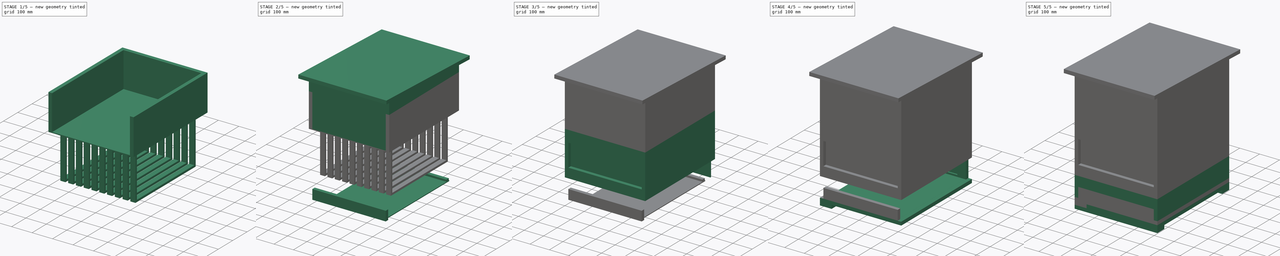
[diagram: build sequence overview — one tinted view per stage of 5, left to right]
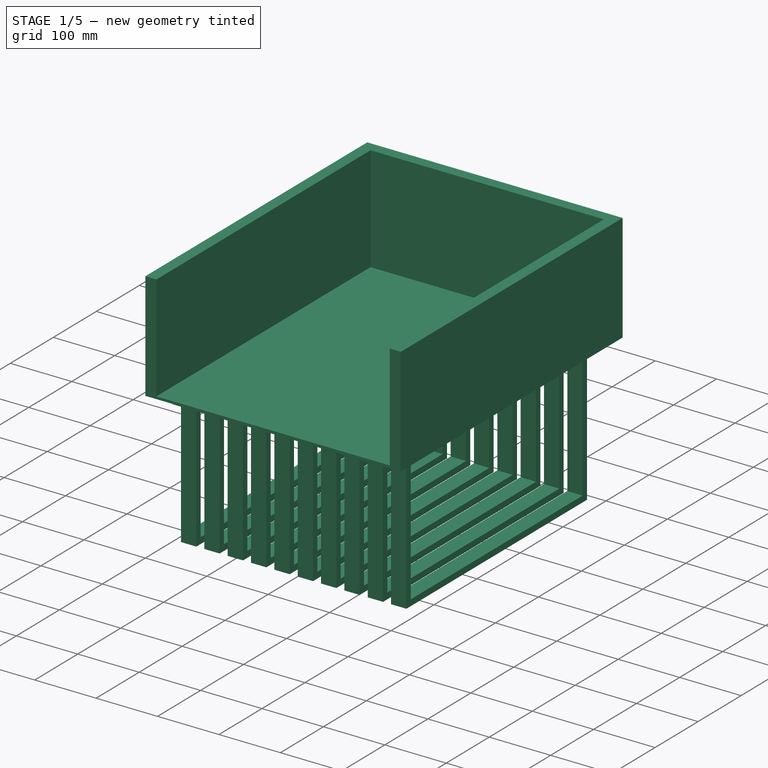
[diagram: stage 1 of 5 — iso view after this stage's code; geometry added in this stage tinted green]
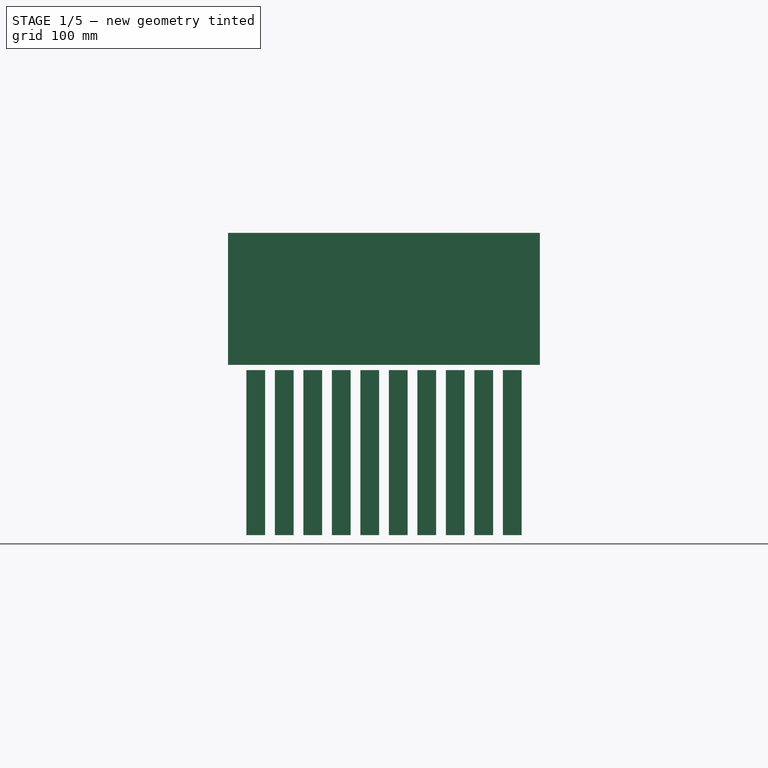
[diagram: stage 1 of 5 — front view after this stage's code; geometry added in this stage tinted green]
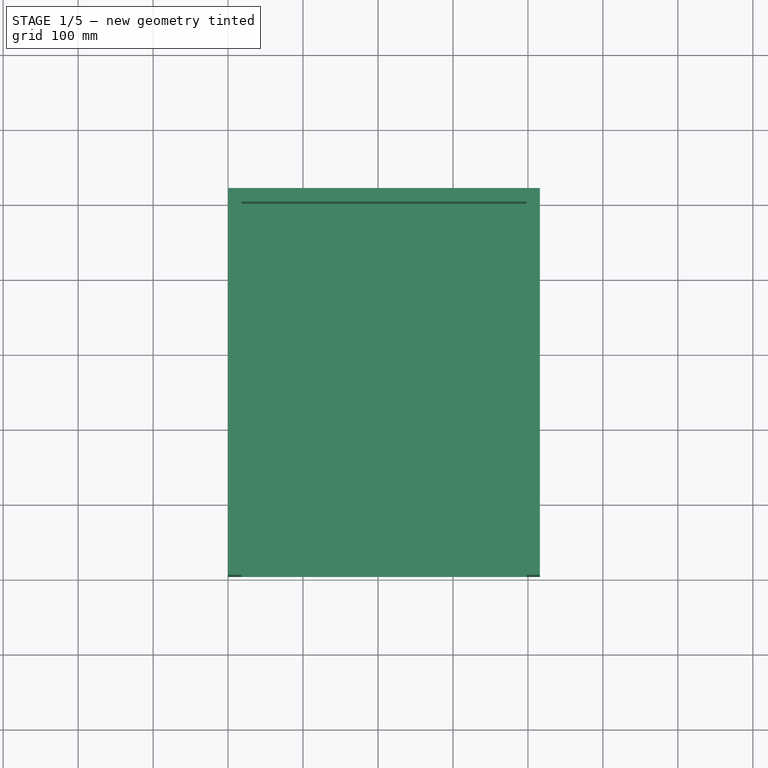
[diagram: stage 1 of 5 — top view after this stage's code; geometry added in this stage tinted green]
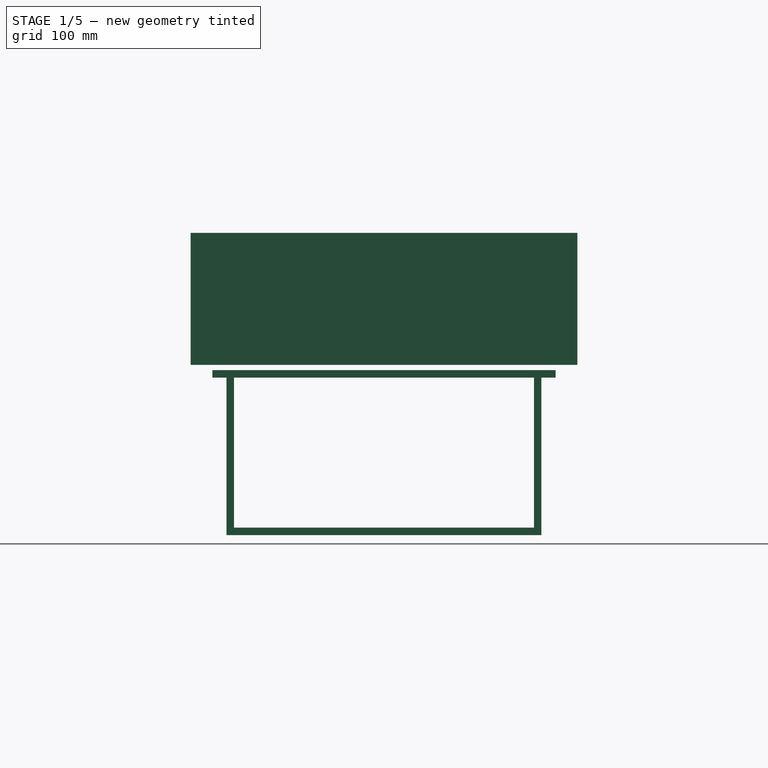
[diagram: stage 1 of 5 — right view after this stage's code; geometry added in this stage tinted green]
FCSTD DOCUMENT  (FreeCAD 0.20R)
Label: Hohenheimer Einfachbeute modifiable
License: All rights reserved
LicenseURL: http://en.wikipedia.org/wiki/All_rights_reserved
objects: Part::Box×43, App::DocumentObjectGroup×5, Part::MultiFuse×2, Sketcher::SketchObject×2, PartDesign::Pad×2, Part::Cut×1, Part::Fuse×1, Spreadsheet::Sheet×1, Part::FeaturePython×1
note: 53 computed .brp shape members not serialized (recipe doc carries the construction recipe); baked Part::Feature solids carry a one-line shape summary decoded from their .brp

FEATURE [Part::Box] Box045  label="Rähmchen obere Leiste"
  AttacherType = Attacher::AttachEngine3D
  Height = 10
  Length = 25
  Placement = pos=(0,-19,210) rot=(0,0,1;0rad)
  Width = 458
  expr: .Placement.Base.z = Spreadsheet.raehmchen_hoehe - 10
  expr: Width = Spreadsheet.raehmchen_obertraeger
FEATURE [Part::Box] Box048  label="Rähmchen Seite"
  AttacherType = Attacher::AttachEngine3D
  Height = 200
  Length = 25
  Placement = pos=(0,410,10) rot=(0,0,1;0rad)
  Width = 10
  expr: .Placement.Base.y = Spreadsheet.raehmchen_breite - 10
  expr: Height = Spreadsheet.raehmchen_hoehe - 10 * 2
FEATURE [Part::Box] Box050  label="Rähmchen Seite 2"
  AttacherType = Attacher::AttachEngine3D
  Height = 200
  Length = 25
  Placement = pos=(0,0,10) rot=(0,0,1;0rad)
  Width = 10
  expr: Height = Spreadsheet.raehmchen_hoehe - 10 * 2
FEATURE [Part::Box] Box051  label="Rähmchen untere Leiste"
  AttacherType = Attacher::AttachEngine3D
  Height = 10
  Length = 25
  Width = 420
  expr: Width = Spreadsheet.raehmchen_breite
FEATURE [Part::MultiFuse] Fusion003  label="Rähmchen001"
  Placement = pos=(24.5,48,154) rot=(0,0,1;0rad)
  Shapes = -> [Box045,Box051,Box048,Box050]
  expr: .Placement.Base.x = Spreadsheet.holzdicke + (Spreadsheet.wabenabstand - 25) / 2
  expr: .Placement.Base.y = Spreadsheet.holzdicke * 2 + 12
  expr: .Placement.Base.z = Spreadsheet.bodenhoehe
FEATURE [Part::Box] Box175  label="Magazin Griff oben (3)002"
  AttacherType = Attacher::AttachEngine3D
  Height = 172
  Length = 380
  Placement = pos=(18,498,385) rot=(0,0,1;0rad)
  Width = 18
  expr: .Placement.Base.x = Spreadsheet.holzdicke
  expr: .Placement.Base.y = Spreadsheet.laenge - Spreadsheet.holzdicke
  expr: .Placement.Base.z = Spreadsheet.bodenhoehe + Spreadsheet.raehmchen_hoehe + 7 + 4
  expr: Length = Spreadsheet.wabenabstand * Spreadsheet.raehmchen_anzahl
  expr: Width = Spreadsheet.holzdicke
FEATURE [Part::Box] Box176  label="Magazin Seitenwand (1)088"
  AttacherType = Attacher::AttachEngine3D
  Height = 172
  Length = 18
  Placement = pos=(398,0,385) rot=(0,0,1;0rad)
  Width = 516
  expr: .Placement.Base.x = Spreadsheet.wabenabstand * Spreadsheet.raehmchen_anzahl + Spreadsheet.holzdicke
  expr: .Placement.Base.z = Spreadsheet.bodenhoehe + Spreadsheet.raehmchen_hoehe + 7 + 4
  expr: Length = Spreadsheet.holzdicke
  expr: Width = Spreadsheet.laenge
FEATURE [Part::Box] Box177  label="Magazin Seitenwand (1.1)002"
  AttacherType = Attacher::AttachEngine3D
  Height = 172
  Length = 18
  Placement = pos=(0,0,385) rot=(0,0,1;0rad)
  Width = 516
  expr: .Placement.Base.z = Spreadsheet.bodenhoehe + Spreadsheet.raehmchen_hoehe + 7 + 4
  expr: Length = Spreadsheet.holzdicke
  expr: Width = Spreadsheet.laenge
FEATURE [Part::Box] Box178  label="Futterzargenboden - Passendes Loch hineinsägen!"
  AttacherType = Attacher::AttachEngine3D
  Height = 4
  Length = 416
  Placement = pos=(0,0,381) rot=(0,0,1;0rad)
  Width = 516
  expr: .Placement.Base.z = Spreadsheet.bodenhoehe + Spreadsheet.raehmchen_hoehe + 7
  expr: Length = Spreadsheet.wabenabstand * Spreadsheet.raehmchen_anzahl + Spreadsheet.holzdicke * 2
  expr: Width = Spreadsheet.laenge
FEATURE [App::DocumentObjectGroup] Gruppe027  label="Futterzarge001"
  Group = -> [Box174,Box175,Box176,Box177,Box178]
FEATURE [Spreadsheet::Sheet] Spreadsheet
  cells = A1(raehmchen_obertraeger)=458; B1=Rähmchen Oberträger A + E + E in mm; A2(raehmchen_seiten)=200; B2=Rähmchen D in mm; C2=<-- Wert wird nicht verwendet; A3(raehmchen_breite)=420; B3=Rähmchen Breite A in mm; A4(raehmchen_hoehe)=220; B4=Rähmchen Höhe; A5(raehmchen_anzahl)=10; B5=Anzahl Rähmchen pro Zarge; D5=Spreadsheet.raehmchen_anzahl; A8(wabenabstand)=38; B8=Wabenabstand; C8=<-- eher groß gewählt, um einfacheres Hantieren mit den Rähmchen zu ermöglichen - 27mm tun es aber sicher auch und führen vermutlich zu weniger Verbau; A9(holzdicke)=18; B9=Holzdicke; D9=Spreadsheet.holzdicke; A11(laenge)==raehmchen_breite + holzdicke * 4 + 12 * 2; B11=Länge Außenmaße; C11=<-- BERECHNETER WERT  - NICHT VERÄNDERN; D11=Spreadsheet.laenge; E11=12*2 ist der Abstand zwischen rähmchen und wand - könnte vmtl auch kleiner sein, funktioniert aber bei mir ; A12(bodenhoehe)==holzdicke * 3 + 100; B12=Höhe Boden; C12=<-- BERECHNETER WERT  - NICHT VERÄNDERN; D12=Spreadsheet.bodenhoehe; A15==wabenabstand * 10 + holzdicke * 2; B15=Breite außenmaße; C15=Spreadsheet.wabenabstand * Spreadsheet.raehmchen_anzahl + Spreadsheet.holzdicke * 2; A17==wabenabstand * 10; C17=Spreadsheet.wabenabstand * Spreadsheet.raehmchen_anzahl; B20=Spreadsheet.holzdicke
FEATURE [Part::FeaturePython] Array  # Draft array (typed FeaturePython)
  AlwaysSyncPlacement = false
  Angle = 360
  ArrayType = 0
  Axis = (0,0,1)
  Base = -> Fusion003
  Center = (0,0,0)
  Count = 10
  ExpandArray = false
  Fuse = false
  IntervalAxis = (0,0,0)
  IntervalX = (38,0,0)
  IntervalY = (0,100,0)
  IntervalZ = (0,0,100)
  NumberCircles = 3
  NumberPolar = 5
  NumberX = 10
  NumberY = 1
  NumberZ = 1
  PlacementList = 10 placements: arithmetic series from (24.5,48,154) step (38,0,0) to (366.5,48,154)
  RadialDistance = 50
  ScaleList = (10) [(1,1,1),(1,1,1),(1,1,1),(1,1,1),(1,1,1),(1,1,1),(1,1,1),(1,1,1),(1,1,1),(1,1,1)]
  Symmetry = 1
  TangentialDistance = 25
  expr: .IntervalX.x = Spreadsheet.wabenabstand
  expr: NumberX = Spreadsheet.raehmchen_anzahl
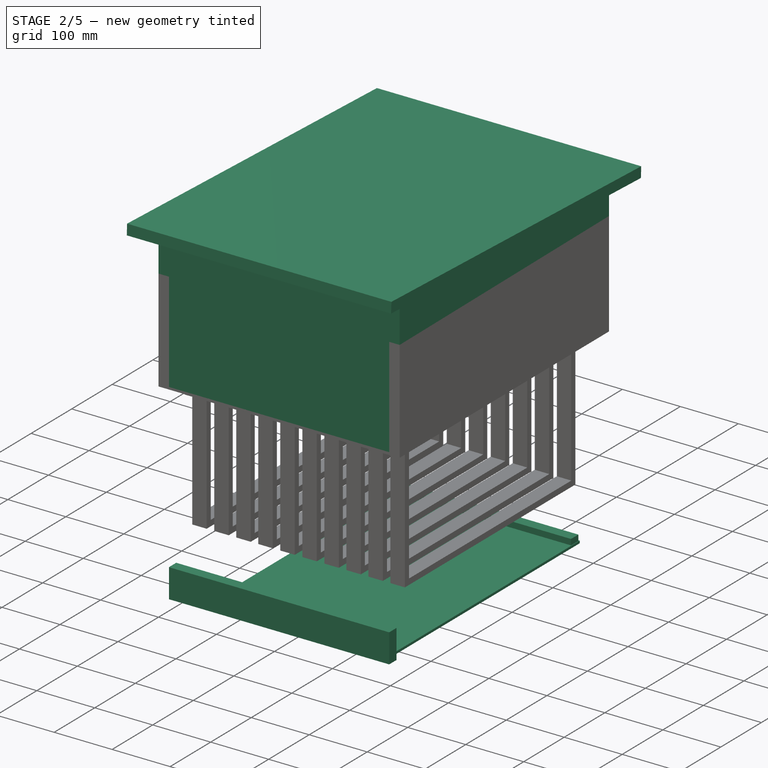
[diagram: stage 2 of 5 — iso view after this stage's code; geometry added in this stage tinted green]
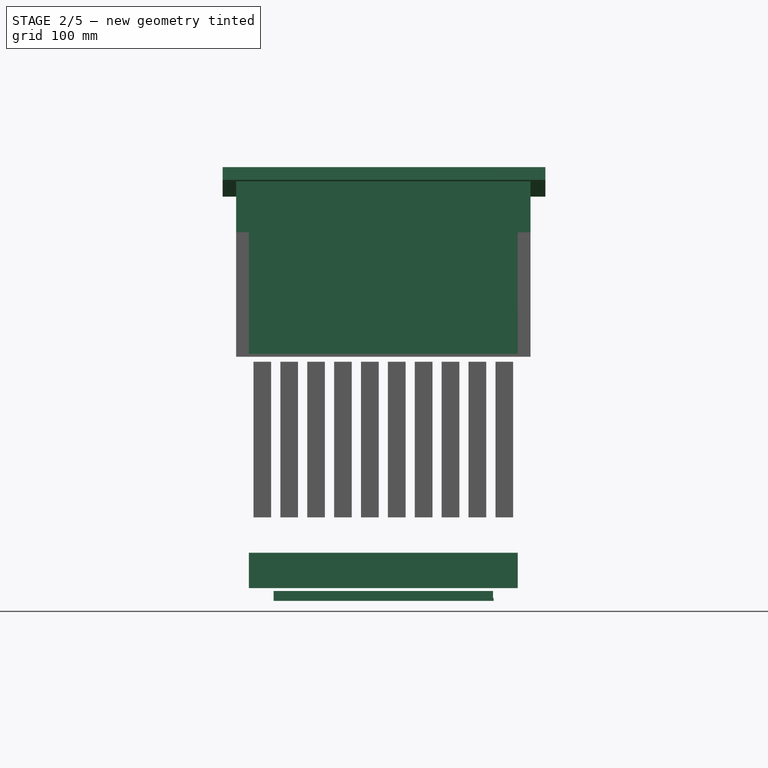
[diagram: stage 2 of 5 — front view after this stage's code; geometry added in this stage tinted green]
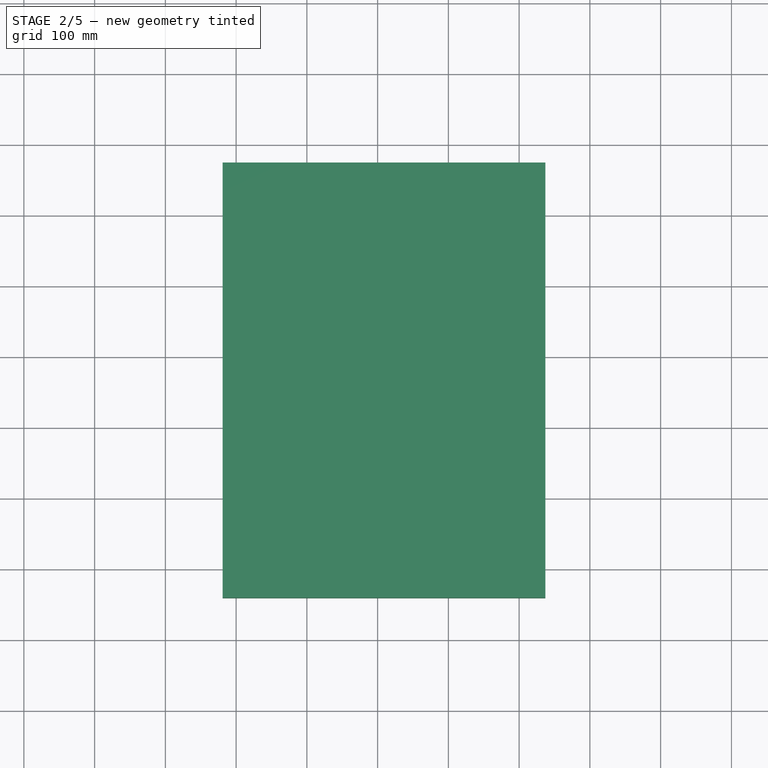
[diagram: stage 2 of 5 — top view after this stage's code; geometry added in this stage tinted green]
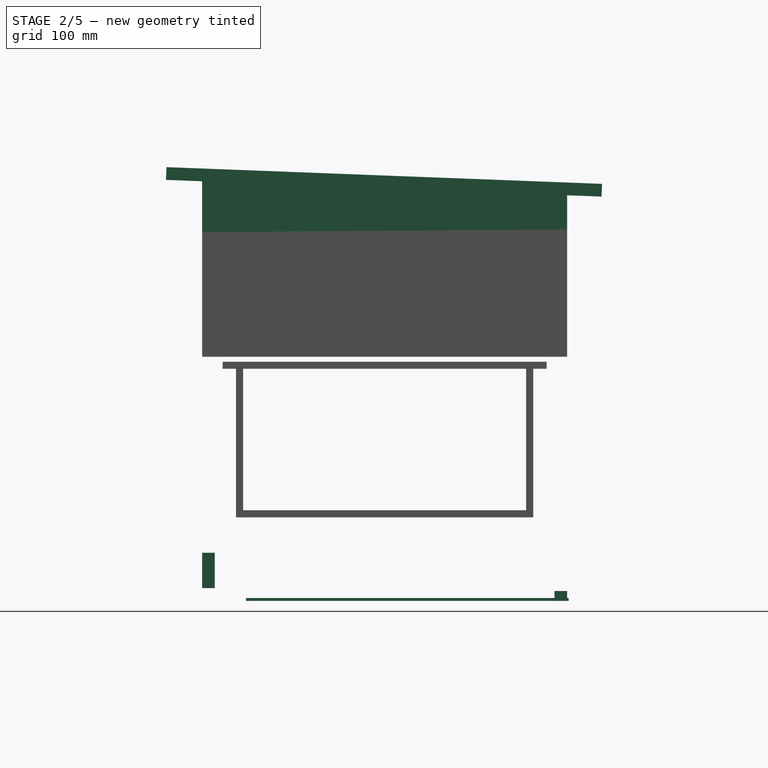
[diagram: stage 2 of 5 — right view after this stage's code; geometry added in this stage tinted green]
FEATURE [Part::Box] Box022  label="Boden Varroalade Verschluss (2.2)"
  AttacherType = Attacher::AttachEngine3D
  Height = 10
  Length = 310
  Placement = pos=(53,498,40) rot=(0,0,1;0rad)
  Width = 18
  expr: .Placement.Base.y = Spreadsheet.laenge - Spreadsheet.holzdicke
  expr: .Placement.Base.z = Spreadsheet.holzdicke * 2 + 4
  expr: Height = Spreadsheet.holzdicke - 8
  expr: Length = Spreadsheet.wabenabstand * Spreadsheet.raehmchen_anzahl + Spreadsheet.holzdicke * 2 - 2 * 50 - 2 * 3
  expr: Width = Spreadsheet.holzdicke
FEATURE [Part::Box] Box042  label="Deckel Stirnseite (2.1)"
  AttacherType = Attacher::AttachEngine3D
  Height = 70
  Length = 380
  Placement = pos=(18,0,561) rot=(0,0,1;0rad)
  Width = 18
  expr: .Placement.Base.x = Spreadsheet.holzdicke
  expr: .Placement.Base.z = Spreadsheet.bodenhoehe + Spreadsheet.raehmchen_hoehe + 7 + 4 + 176
  expr: Length = Spreadsheet.wabenabstand * Spreadsheet.raehmchen_anzahl
  expr: Width = Spreadsheet.holzdicke
FEATURE [Part::Box] Box043  label="Deckel Oberseite (3)"
  AttacherType = Attacher::AttachEngine3D
  Height = 18
  Length = 456
  Placement = pos=(-19,-51,631) rot=(-1,0,0;0.038397rad)
  Width = 616
  expr: .Placement.Base.z = Spreadsheet.bodenhoehe + Spreadsheet.raehmchen_hoehe + 7 + 4 + 70 + 176
  expr: Height = Spreadsheet.holzdicke
  expr: Length = Spreadsheet.wabenabstand * Spreadsheet.raehmchen_anzahl + 38 * 2
  expr: Width = Spreadsheet.laenge + 100
FEATURE [App::DocumentObjectGroup] Gruppe004  label="Rähmchen"
  Group = -> [Fusion003]
FEATURE [App::DocumentObjectGroup] Gruppe001  label="Zarge1"
  Group = -> [Box025,Box026,Box027,Box028,Box029,Box030,Box031,Box032,Gruppe004]
FEATURE [Part::Box] Box044  label="Deckel Stirnseite (2.1)001"
  AttacherType = Attacher::AttachEngine3D
  Height = 4
  Length = 416
  Placement = pos=(0,0,557) rot=(0,0,1;0rad)
  Width = 516
  expr: .Placement.Base.z = Spreadsheet.bodenhoehe + Spreadsheet.raehmchen_hoehe + 7 + 176
  expr: Length = Spreadsheet.wabenabstand * Spreadsheet.raehmchen_anzahl + Spreadsheet.holzdicke * 2
  expr: Width = Spreadsheet.laenge
FEATURE [Part::Box] Box172  label="Boden Varroalade Schaufläche"
  AttacherType = Attacher::AttachEngine3D
  Height = 4
  Length = 311
  Placement = pos=(53,62,36) rot=(0,0,1;0rad)
  Width = 456
  expr: .Placement.Base.z = Spreadsheet.holzdicke * 2
  expr: Length = Spreadsheet.wabenabstand * Spreadsheet.raehmchen_anzahl + Spreadsheet.holzdicke * 2 - 100 - 5
  expr: Width = Spreadsheet.laenge - 60
FEATURE [Part::Fuse] Fusion064  label="Varroaschublade"
  Base = -> Box172
  Tool = -> Box022
FEATURE [Sketcher::SketchObject] Sketch002
  FullyConstrained = true
  MapMode = 5
  Placement = pos=(0,0,561) rot=(0.57735,0.57735,0.57735;2.0944rad)
  expr: .Placement.Base.z = Spreadsheet.bodenhoehe + Spreadsheet.raehmchen_hoehe + 7 + 4 + 176
  expr: Constraints[7] = Spreadsheet.laenge
  sketch-geometry (4):
    g0: LineSegment StartX=0 StartY=0 StartZ=0 EndX=0 EndY=70 EndZ=0
    g1: LineSegment StartX=0 StartY=70 StartZ=0 EndX=516 EndY=50 EndZ=0
    g2: LineSegment StartX=516 StartY=50 StartZ=0 EndX=516 EndY=0 EndZ=0
    g3: LineSegment StartX=516 StartY=0 StartZ=0 EndX=0 EndY=0 EndZ=0
  constraints (12):
    c: Coincident(g0,g1)
    c: Coincident(g1,g2)
    c: Coincident(g2,g3)
    c: Coincident(g3,g0)
    c: Parallel(g2,g0)
    c: Parallel(g0,g-2)
    c: Perpendicular(g2,g3)
    c: Distance(g3) = 516
    c: Distance(g0) = 70
    c: Distance(g2) = 50
    c: PointOnObject(g0,g-2)
    c: PointOnObject(g0,g-1)
FEATURE [PartDesign::Pad] Pad001  label="Deckel Seitenwand 1"
  AllowMultiFace = false
  Direction = (1,-1e-16,2e-16)
  Length = 18
  Length2 = 100
  Placement = pos=(0,0,561) rot=(0.57735,0.57735,0.57735;2.0944rad)
  Profile = -> Sketch002
  Type = 0
  expr: Length = Spreadsheet.holzdicke
FEATURE [Sketcher::SketchObject] Sketch001
  FullyConstrained = true
  MapMode = 5
  Placement = pos=(398,0,561) rot=(0.57735,0.57735,0.57735;2.0944rad)
  expr: .Placement.Base.x = Spreadsheet.wabenabstand * Spreadsheet.raehmchen_anzahl + Spreadsheet.holzdicke
  expr: .Placement.Base.z = Spreadsheet.bodenhoehe + Spreadsheet.raehmchen_hoehe + 7 + 4 + 176
  expr: Constraints[6] = Spreadsheet.laenge
  sketch-geometry (4):
    g0: LineSegment StartX=0 StartY=0 StartZ=0 EndX=0 EndY=70 EndZ=0
    g1: LineSegment StartX=0 StartY=70 StartZ=0 EndX=516 EndY=50 EndZ=0
    g2: LineSegment StartX=516 StartY=50 StartZ=0 EndX=516 EndY=0 EndZ=0
    g3: LineSegment StartX=516 StartY=0 StartZ=0 EndX=0 EndY=0 EndZ=0
  constraints (12):
    c: Coincident(g0,g1)
    c: Coincident(g1,g2)
    c: Coincident(g2,g3)
    c: Coincident(g3,g0)
    c: Perpendicular(g3,g2)
    c: Perpendicular(g3,g0)
    c: Distance(g3) = 516
    c: Distance(g2) = 50
    c: Horizontal(g3)
    c: Distance(g0) = 70
    c: PointOnObject(g0,g-2)
    c: PointOnObject(g0,g-1)
FEATURE [PartDesign::Pad] Pad  label="Deckel Seitenwand 2"
  AllowMultiFace = false
  Direction = (1,-1e-16,2e-16)
  Length = 18
  Length2 = 100
  Placement = pos=(398,0,561) rot=(0.57735,0.57735,0.57735;2.0944rad)
  Profile = -> Sketch001
  Type = 0
  expr: Length = Spreadsheet.holzdicke
FEATURE [App::DocumentObjectGroup] Gruppe003  label="Deckel"
  Group = -> [Box041,Box042,Box043,Box044,Pad001,Pad]
FEATURE [Part::Box] Box173  label="Boden - Fluglochverschluss"
  AttacherType = Attacher::AttachEngine3D
  Height = 50
  Length = 380
  Placement = pos=(18,0,54) rot=(0,0,1;0rad)
  Width = 18
  expr: .Placement.Base.x = Spreadsheet.holzdicke
  expr: .Placement.Base.z = Spreadsheet.holzdicke * 3
  expr: Length = Spreadsheet.wabenabstand * Spreadsheet.raehmchen_anzahl
  expr: Width = Spreadsheet.holzdicke
FEATURE [App::DocumentObjectGroup] Gruppe  label="Boden"
  Group = -> [Box,Box002,Box003,Box004,Box005,Box007,Box008,Box009,Box014,Box015,Box016,Box017,Box018,Box019,Cut,Fusion,Fusion064,Box173]
FEATURE [Part::Box] Box174  label="Magazin Griff oben (3.1)002"
  AttacherType = Attacher::AttachEngine3D
  Height = 172
  Length = 380
  Placement = pos=(18,0,385) rot=(0,0,1;0rad)
  Width = 18
  expr: .Placement.Base.x = Spreadsheet.holzdicke
  expr: .Placement.Base.z = Spreadsheet.bodenhoehe + Spreadsheet.raehmchen_hoehe + 7 + 4
  expr: Length = Spreadsheet.wabenabstand * Spreadsheet.raehmchen_anzahl
  expr: Width = Spreadsheet.holzdicke
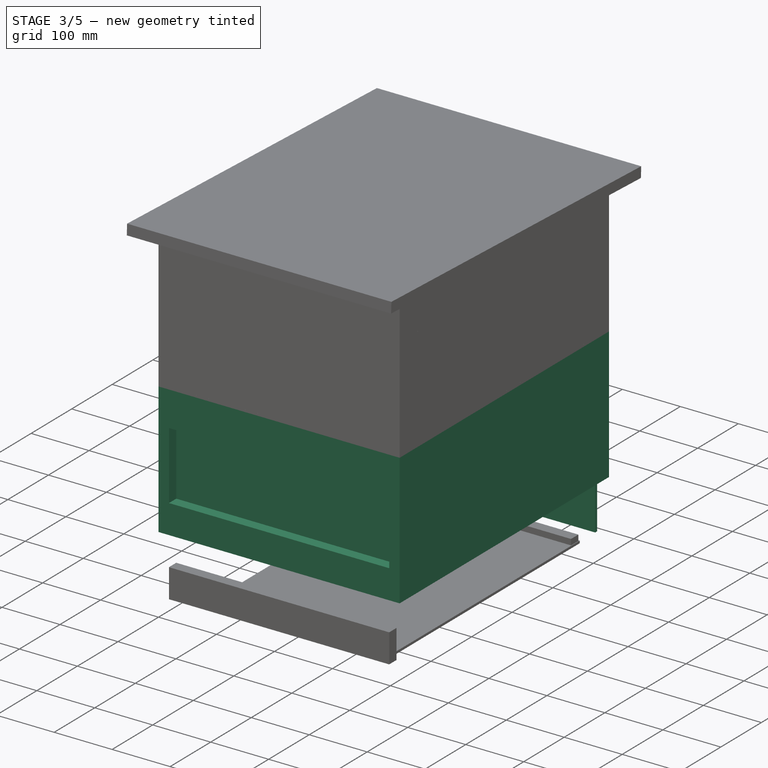
[diagram: stage 3 of 5 — iso view after this stage's code; geometry added in this stage tinted green]
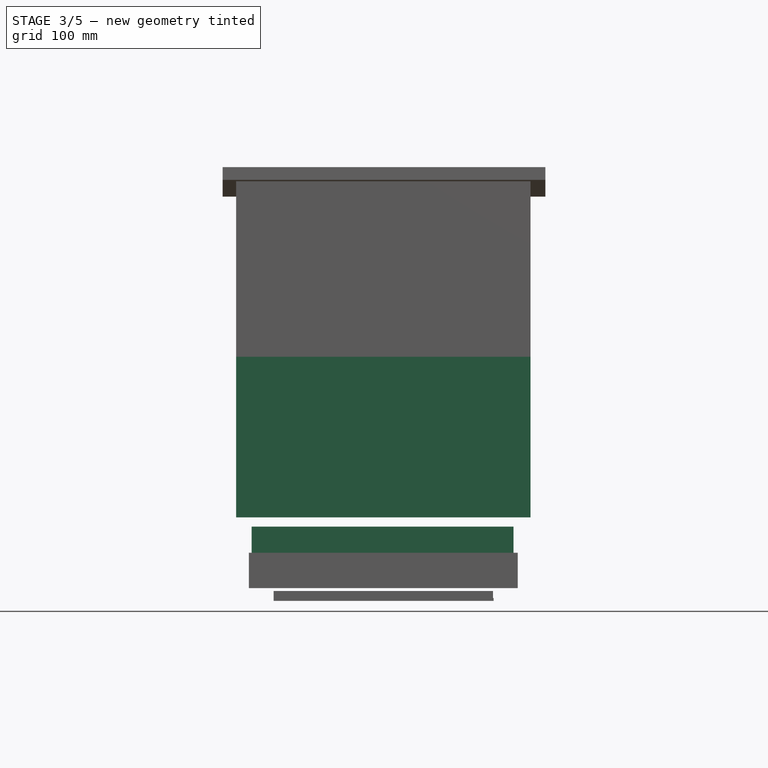
[diagram: stage 3 of 5 — front view after this stage's code; geometry added in this stage tinted green]
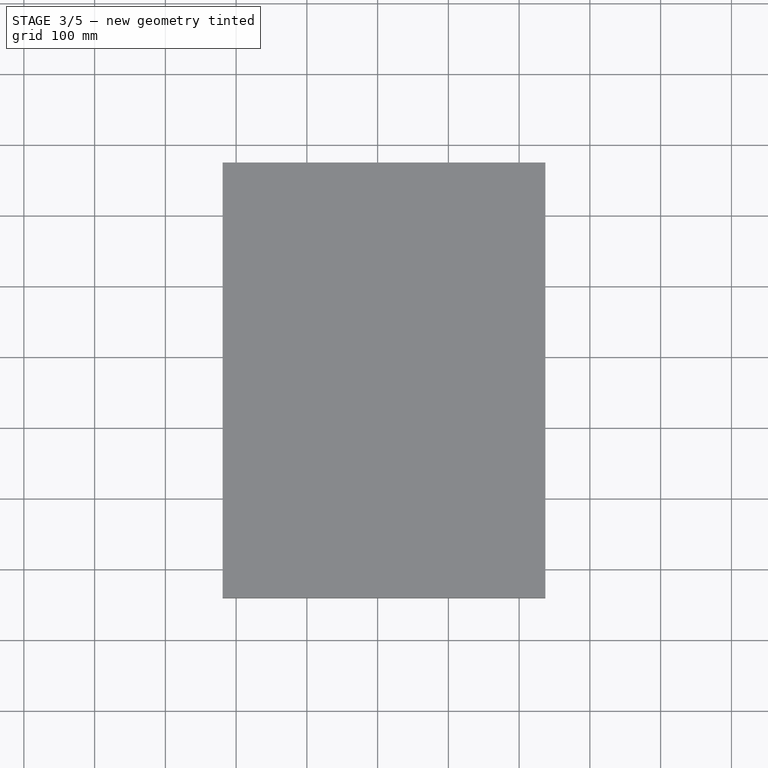
[diagram: stage 3 of 5 — top view after this stage's code; geometry added in this stage tinted green]
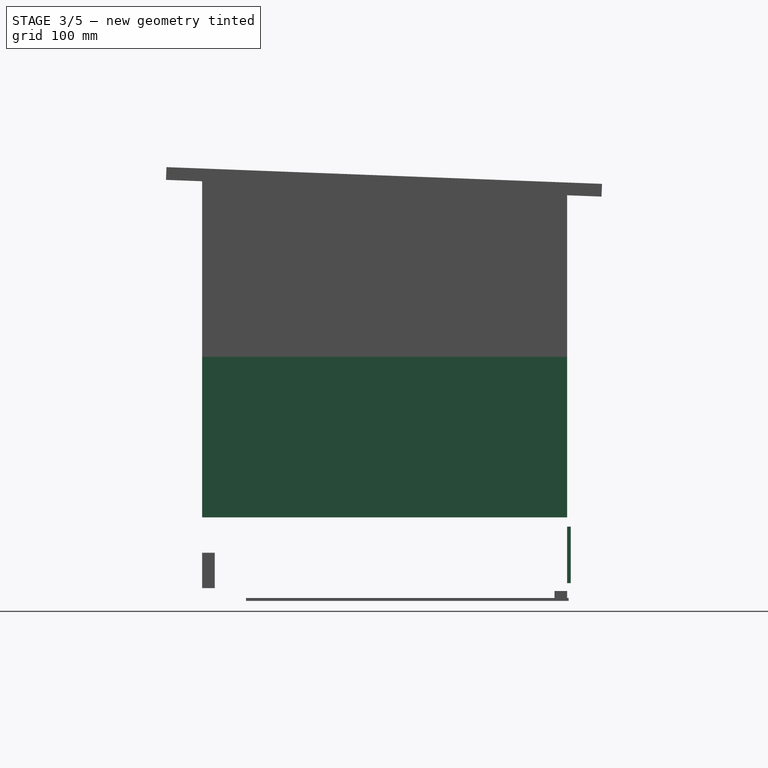
[diagram: stage 3 of 5 — right view after this stage's code; geometry added in this stage tinted green]
FEATURE [Part::Box] Box024  label="Boden Rückwand Deckel Schutz gg Reinrutschen"
  AttacherType = Attacher::AttachEngine3D
  Height = 80
  Length = 370
  Placement = pos=(22,516,61) rot=(0,0,1;0rad)
  Width = 5
  expr: .Placement.Base.x = Spreadsheet.holzdicke + 4
  expr: .Placement.Base.y = Spreadsheet.laenge
  expr: .Placement.Base.z = Spreadsheet.holzdicke * 3 + 7
  expr: Length = Spreadsheet.wabenabstand * Spreadsheet.raehmchen_anzahl - 10
FEATURE [Part::Box] Box025  label="Magazin Stirnwand (2)"
  AttacherType = Attacher::AttachEngine3D
  Height = 210
  Length = 380
  Placement = pos=(18,480,154) rot=(0,0,1;0rad)
  Width = 18
  expr: .Placement.Base.x = Spreadsheet.holzdicke
  expr: .Placement.Base.y = Spreadsheet.laenge - Spreadsheet.holzdicke * 2
  expr: .Placement.Base.z = Spreadsheet.bodenhoehe
  expr: Height = Spreadsheet.raehmchen_hoehe - 17 + 7
  expr: Length = Spreadsheet.wabenabstand * Spreadsheet.raehmchen_anzahl
  expr: Width = Spreadsheet.holzdicke
FEATURE [Part::Box] Box026  label="Magazin Stirnwand (2.1)"
  AttacherType = Attacher::AttachEngine3D
  Height = 210
  Length = 380
  Placement = pos=(18,18,154) rot=(0,0,1;0rad)
  Width = 18
  expr: .Placement.Base.x = Spreadsheet.holzdicke
  expr: .Placement.Base.y = Spreadsheet.holzdicke
  expr: .Placement.Base.z = Spreadsheet.bodenhoehe
  expr: Height = Spreadsheet.raehmchen_hoehe - 17 + 7
  expr: Length = Spreadsheet.wabenabstand * Spreadsheet.raehmchen_anzahl
  expr: Width = Spreadsheet.holzdicke
FEATURE [Part::Box] Box027  label="Magazin Griff oben (3)"
  AttacherType = Attacher::AttachEngine3D
  Height = 60
  Length = 380
  Placement = pos=(18,0,321) rot=(0,0,1;0rad)
  Width = 18
  expr: .Placement.Base.x = Spreadsheet.holzdicke
  expr: .Placement.Base.z = Spreadsheet.bodenhoehe + 7 + Spreadsheet.raehmchen_hoehe - 60
  expr: Length = Spreadsheet.wabenabstand * Spreadsheet.raehmchen_anzahl
  expr: Width = Spreadsheet.holzdicke
FEATURE [Part::Box] Box028  label="Magazin Griff oben (3.1)"
  AttacherType = Attacher::AttachEngine3D
  Height = 60
  Length = 380
  Placement = pos=(18,498,321) rot=(0,0,1;0rad)
  Width = 18
  expr: .Placement.Base.x = Spreadsheet.holzdicke
  expr: .Placement.Base.y = Spreadsheet.laenge - Spreadsheet.holzdicke
  expr: .Placement.Base.z = Spreadsheet.bodenhoehe + 7 + Spreadsheet.raehmchen_hoehe - 60
  expr: Length = Spreadsheet.wabenabstand * Spreadsheet.raehmchen_anzahl
  expr: Width = Spreadsheet.holzdicke
FEATURE [Part::Box] Box029  label="Magazin Griff unten (4)"
  AttacherType = Attacher::AttachEngine3D
  Height = 50
  Length = 380
  Placement = pos=(18,0,154) rot=(0,0,1;0rad)
  Width = 18
  expr: .Placement.Base.x = Spreadsheet.holzdicke
  expr: .Placement.Base.z = Spreadsheet.bodenhoehe
  expr: Length = Spreadsheet.wabenabstand * Spreadsheet.raehmchen_anzahl
  expr: Width = Spreadsheet.holzdicke
FEATURE [Part::Box] Box030  label="Magazin Griff unten (4.1)"
  AttacherType = Attacher::AttachEngine3D
  Height = 50
  Length = 380
  Placement = pos=(18,498,154) rot=(0,0,1;0rad)
  Width = 18
  expr: .Placement.Base.x = Spreadsheet.holzdicke
  expr: .Placement.Base.y = Spreadsheet.laenge - Spreadsheet.holzdicke
  expr: .Placement.Base.z = Spreadsheet.bodenhoehe
  expr: Length = Spreadsheet.wabenabstand * Spreadsheet.raehmchen_anzahl
  expr: Width = Spreadsheet.holzdicke
FEATURE [Part::Box] Box031  label="Magazin Seitenwand (1)"
  AttacherType = Attacher::AttachEngine3D
  Height = 227
  Length = 18
  Placement = pos=(0,0,154) rot=(0,0,1;0rad)
  Width = 516
  expr: .Placement.Base.z = Spreadsheet.bodenhoehe
  expr: Height = Spreadsheet.raehmchen_hoehe + 7
  expr: Length = Spreadsheet.holzdicke
  expr: Width = Spreadsheet.laenge
FEATURE [Part::Box] Box032  label="Magazin Seitenwand (1.1)"
  AttacherType = Attacher::AttachEngine3D
  Height = 227
  Length = 18
  Placement = pos=(398,0,154) rot=(0,0,1;0rad)
  Width = 516
  expr: .Placement.Base.x = Spreadsheet.wabenabstand * Spreadsheet.raehmchen_anzahl + Spreadsheet.holzdicke
  expr: .Placement.Base.z = Spreadsheet.bodenhoehe
  expr: Height = Spreadsheet.raehmchen_hoehe + 7
  expr: Length = Spreadsheet.holzdicke
  expr: Width = Spreadsheet.laenge
FEATURE [Part::Box] Box041  label="Deckel Stirnseite (2)"
  AttacherType = Attacher::AttachEngine3D
  Height = 50
  Length = 380
  Placement = pos=(18,498,561) rot=(0,0,1;0rad)
  Width = 18
  expr: .Placement.Base.x = Spreadsheet.holzdicke
  expr: .Placement.Base.y = Spreadsheet.laenge - Spreadsheet.holzdicke
  expr: .Placement.Base.z = Spreadsheet.bodenhoehe + Spreadsheet.raehmchen_hoehe + 7 + 4 + 176
  expr: Length = Spreadsheet.wabenabstand * Spreadsheet.raehmchen_anzahl
  expr: Width = Spreadsheet.holzdicke
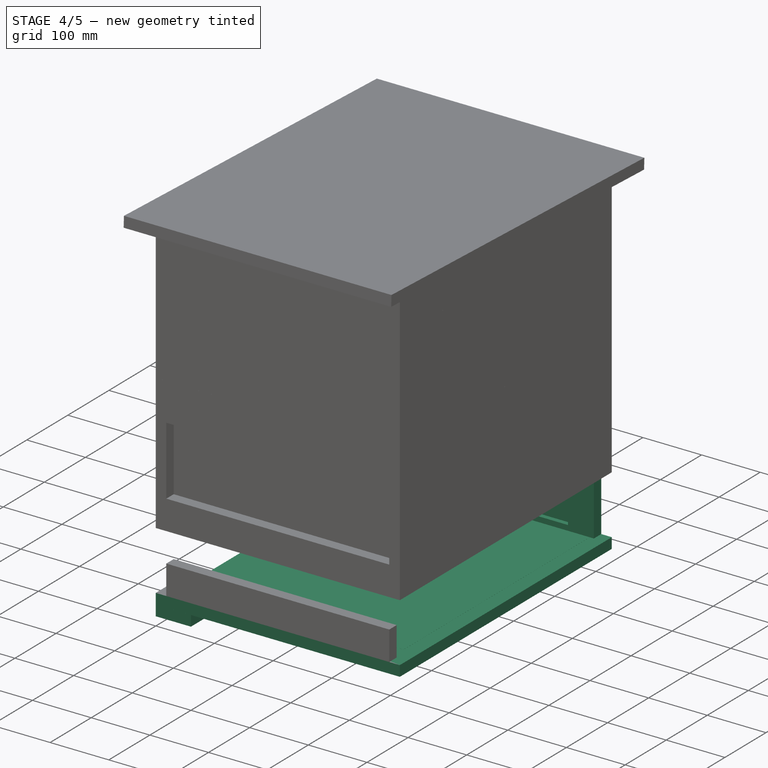
[diagram: stage 4 of 5 — iso view after this stage's code; geometry added in this stage tinted green]
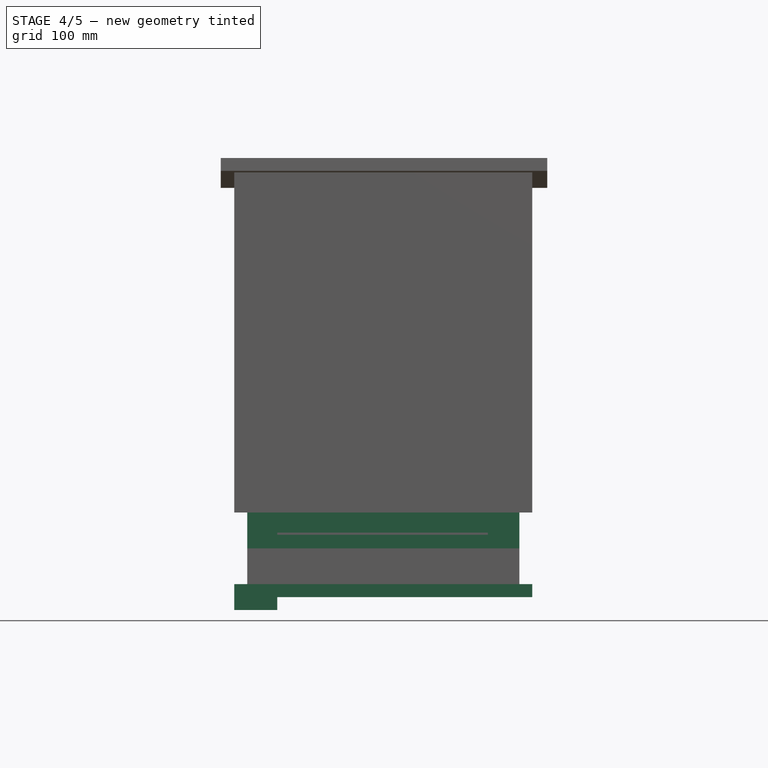
[diagram: stage 4 of 5 — front view after this stage's code; geometry added in this stage tinted green]
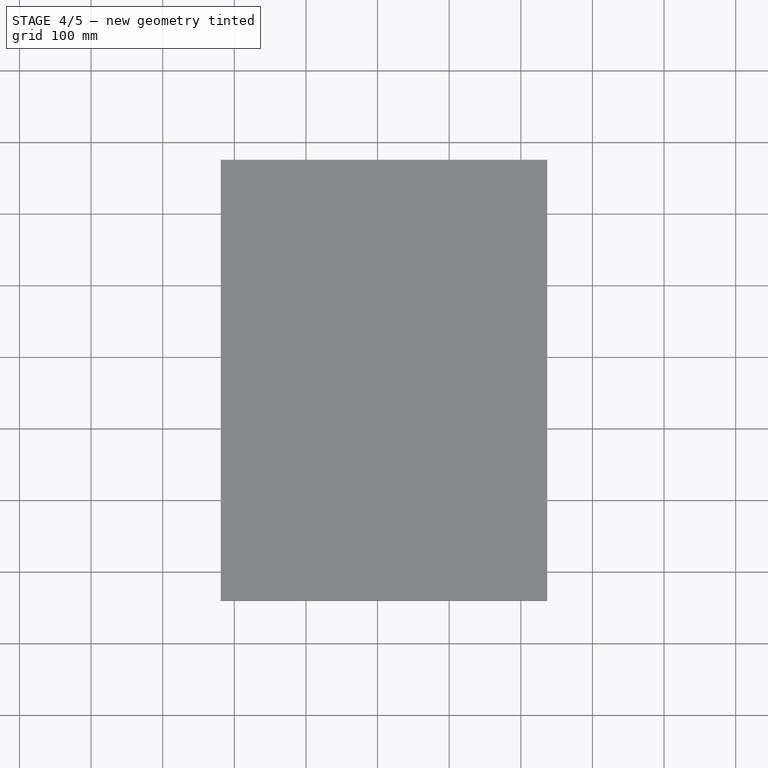
[diagram: stage 4 of 5 — top view after this stage's code; geometry added in this stage tinted green]
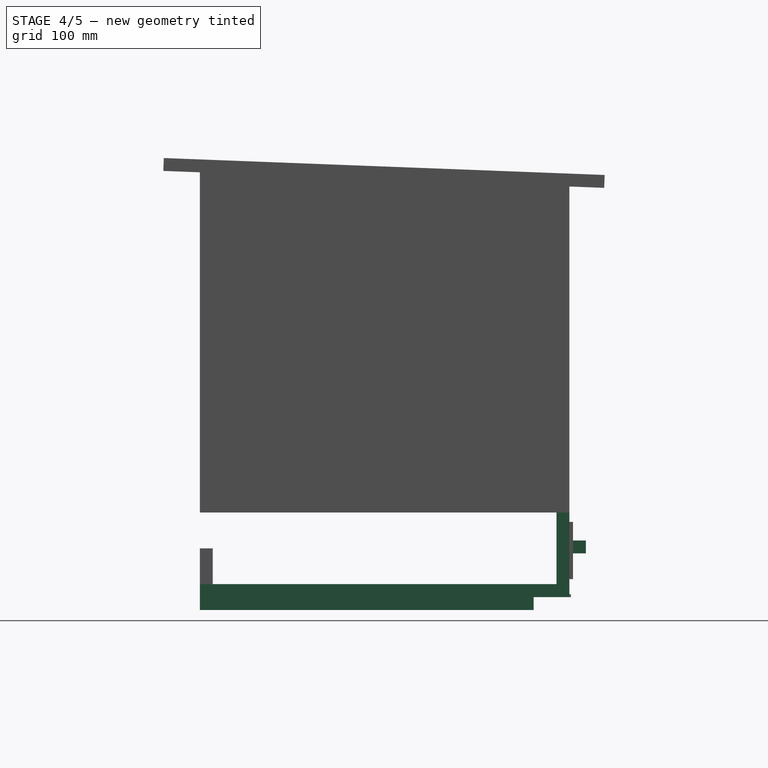
[diagram: stage 4 of 5 — right view after this stage's code; geometry added in this stage tinted green]
FEATURE [Part::Box] Box001  label="Boden Rückseite (2)"
  AttacherType = Attacher::AttachEngine3D
  Height = 100
  Length = 380
  Placement = pos=(18,498,54) rot=(0,0,1;0rad)
  Width = 18
  expr: .Placement.Base.x = Spreadsheet.holzdicke
  expr: .Placement.Base.y = Spreadsheet.laenge - Spreadsheet.holzdicke
  expr: .Placement.Base.z = Spreadsheet.holzdicke * 3
  expr: Length = Spreadsheet.wabenabstand * Spreadsheet.raehmchen_anzahl
  expr: Width = Spreadsheet.holzdicke
FEATURE [Part::Box] Box016  label="Boden - Anflugbrett (7)"
  AttacherType = Attacher::AttachEngine3D
  Height = 60
  Length = 416
  Placement = pos=(0,60,36) rot=(1,0,0;1.5708rad)
  Width = 18
  expr: .Placement.Base.z = Spreadsheet.holzdicke * 2
  expr: Length = Spreadsheet.wabenabstand * Spreadsheet.raehmchen_anzahl + Spreadsheet.holzdicke * 2
  expr: Width = Spreadsheet.holzdicke
FEATURE [Part::Box] Box017  label="Boden - Untere Seitenwand (5)001"
  AttacherType = Attacher::AttachEngine3D
  Height = 18
  Length = 50
  Placement = pos=(366,60,36) rot=(0,0,1;0rad)
  Width = 456
  expr: .Placement.Base.x = Spreadsheet.wabenabstand * Spreadsheet.raehmchen_anzahl + Spreadsheet.holzdicke * 2 - 50
  expr: .Placement.Base.z = Spreadsheet.holzdicke * 2
  expr: Height = Spreadsheet.holzdicke
  expr: Width = Spreadsheet.laenge - 60
FEATURE [Part::Box] Box018  label="Boden - Untere Führungsschiene (6)001"
  AttacherType = Attacher::AttachEngine3D
  Height = 18
  Length = 60
  Placement = pos=(0,0,18) rot=(0,0,1;0rad)
  Width = 466
  expr: .Placement.Base.z = Spreadsheet.holzdicke
  expr: Height = Spreadsheet.holzdicke
  expr: Width = Spreadsheet.laenge - 50
FEATURE [Part::Box] Box019  label="Drahtgitter"
  AttacherType = Attacher::AttachEngine3D
  Height = 0.1
  Length = 370
  Placement = pos=(21,45,54) rot=(0,0,1;0rad)
  Width = 480
  expr: .Placement.Base.x = Spreadsheet.holzdicke + 3
  expr: .Placement.Base.y = 45
  expr: .Placement.Base.z = Spreadsheet.holzdicke * 3
  expr: Length = Spreadsheet.wabenabstand * Spreadsheet.raehmchen_anzahl - 10
  expr: Width = Spreadsheet.laenge - 2 * 18
FEATURE [Part::Box] Box021  label="Boden Rückseite Bearbeitungsloch-Deckel (2.1)001"
  AttacherType = Attacher::AttachEngine3D
  Height = 63
  Length = 294
  Placement = pos=(60,498,63) rot=(0,0,1;0rad)
  Width = 18
  expr: .Placement.Base.x = Spreadsheet.holzdicke + 42
  expr: .Placement.Base.y = Spreadsheet.laenge - Spreadsheet.holzdicke
  expr: .Placement.Base.z = Spreadsheet.holzdicke * 3 + 9
  expr: Length = Spreadsheet.wabenabstand * Spreadsheet.raehmchen_anzahl - 86
  expr: Width = Spreadsheet.holzdicke
FEATURE [Part::Cut] Cut  label="Boden Rückseite (2) mit Deckel-Ausschnitt"
  Base = -> Box001
  Tool = -> Box021
FEATURE [Part::Box] Box020  label="Boden Bearbeitungsloch Brett Ausschnitt"
  AttacherType = Attacher::AttachEngine3D
  Height = 60
  Length = 294
  Placement = pos=(60,506,63) rot=(0,0,1;0rad)
  Width = 10
  expr: .Placement.Base.x = Spreadsheet.holzdicke + 42
  expr: .Placement.Base.y = Spreadsheet.laenge - 10
  expr: .Placement.Base.z = Spreadsheet.holzdicke * 3 + 9
  expr: Height = 60
  expr: Length = Spreadsheet.wabenabstand * Spreadsheet.raehmchen_anzahl - 86
FEATURE [Part::Box] Box023  label="Boden Bearbeitungsloch Deckel Griff"
  AttacherType = Attacher::AttachEngine3D
  Height = 18
  Length = 150
  Placement = pos=(133,521,97) rot=(0,0,1;0rad)
  Width = 18
  expr: .Placement.Base.x = Spreadsheet.holzdicke + Spreadsheet.raehmchen_anzahl * Spreadsheet.wabenabstand / 2 - 150 / 2
  expr: .Placement.Base.y = Spreadsheet.laenge + 5
  expr: .Placement.Base.z = Spreadsheet.holzdicke * 3 + 43
FEATURE [Part::MultiFuse] Fusion  label="Boden Rückseite Öffnung Deckel (2.1)"
  Shapes = -> [Box020,Box023,Box024]
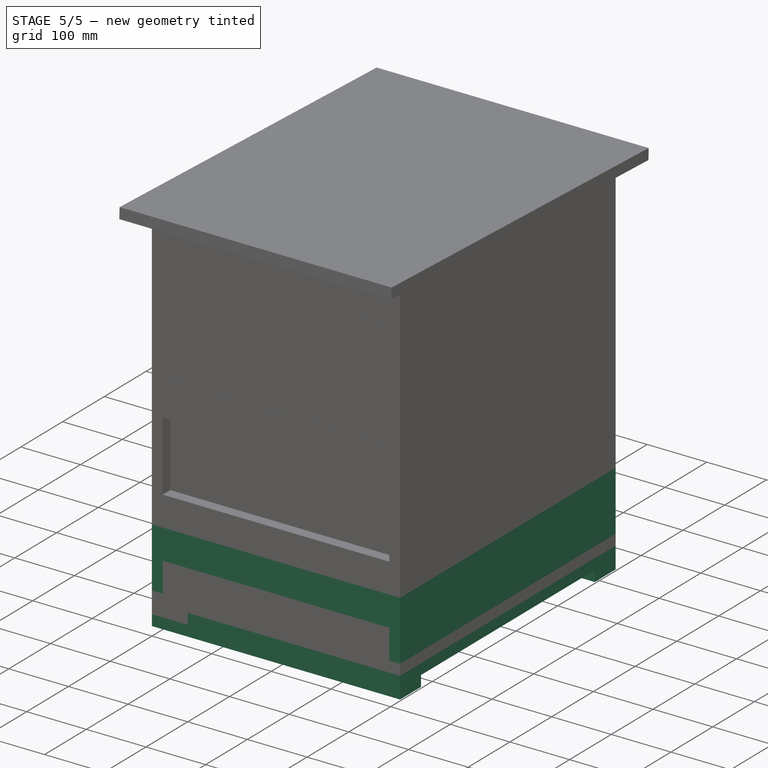
[diagram: stage 5 of 5 — iso view after this stage's code; geometry added in this stage tinted green]
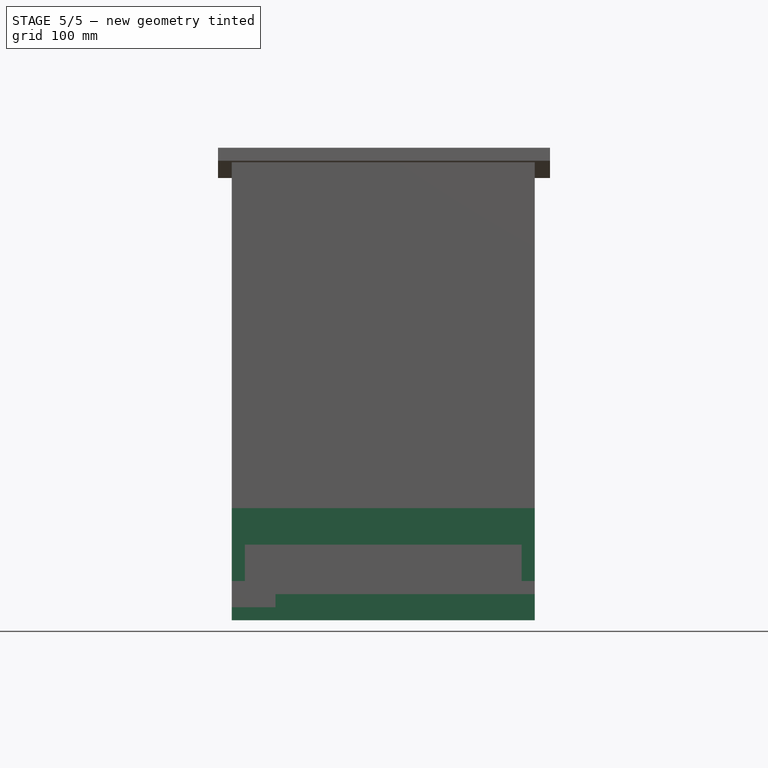
[diagram: stage 5 of 5 — front view after this stage's code; geometry added in this stage tinted green]
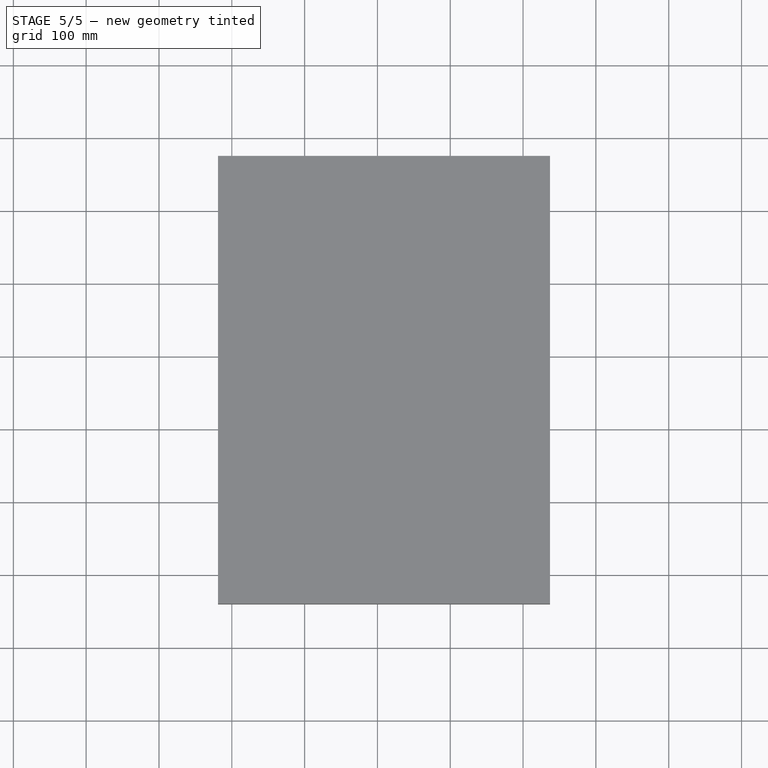
[diagram: stage 5 of 5 — top view after this stage's code; geometry added in this stage tinted green]
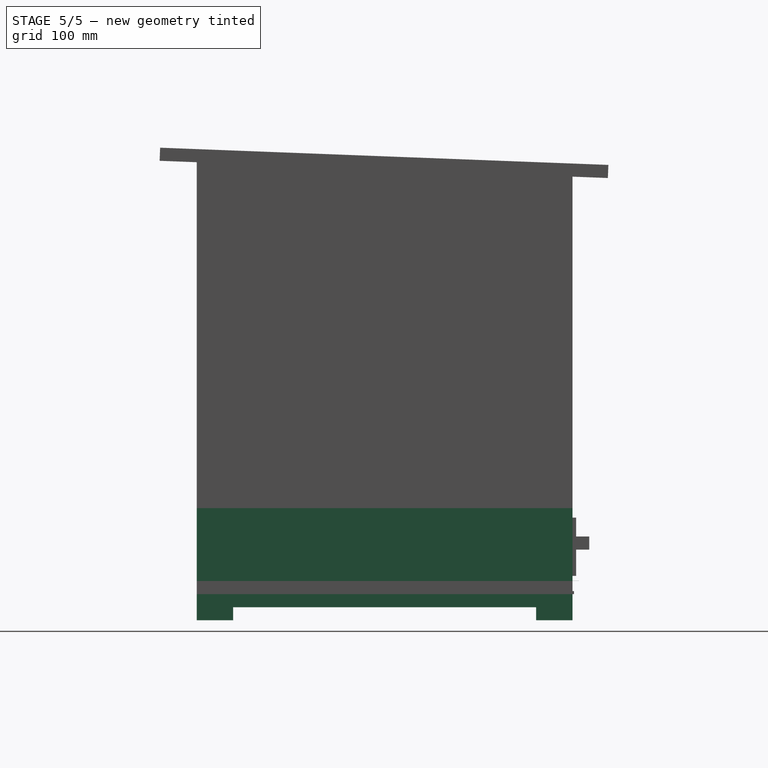
[diagram: stage 5 of 5 — right view after this stage's code; geometry added in this stage tinted green]
FEATURE [Part::Box] Box  label="Boden - Rechte Seitenwand"
  AttacherType = Attacher::AttachEngine3D
  Height = 100
  Length = 516
  Placement = pos=(18,0,54) rot=(0,0,1;1.5708rad)
  Width = 18
  expr: .Placement.Base.x = Spreadsheet.holzdicke
  expr: .Placement.Base.z = Spreadsheet.holzdicke * 3
  expr: Length = Spreadsheet.laenge
  expr: Width = Spreadsheet.holzdicke
FEATURE [Part::Box] Box002  label="Boden - Obere Frontseite (3)"
  AttacherType = Attacher::AttachEngine3D
  Height = 50
  Length = 380
  Placement = pos=(18,0,104) rot=(0,0,1;0rad)
  Width = 18
  expr: .Placement.Base.x = Spreadsheet.holzdicke
  expr: .Placement.Base.z = Spreadsheet.holzdicke * 3 + 50
  expr: Length = Spreadsheet.wabenabstand * Spreadsheet.raehmchen_anzahl
  expr: Width = Spreadsheet.holzdicke
FEATURE [Part::Box] Box003  label="Boden Mäusefalle (4)"
  AttacherType = Attacher::AttachEngine3D
  Height = 68
  Length = 380
  Placement = pos=(18,18,62) rot=(0,0,1;0rad)
  Width = 18
  expr: .Placement.Base.x = Spreadsheet.holzdicke
  expr: .Placement.Base.y = Spreadsheet.holzdicke
  expr: .Placement.Base.z = Spreadsheet.holzdicke * 3 + 8
  expr: Length = Spreadsheet.wabenabstand * Spreadsheet.raehmchen_anzahl
  expr: Width = Spreadsheet.holzdicke
FEATURE [Part::Box] Box004  label="Boden - Untere Seitenwand (5)"
  AttacherType = Attacher::AttachEngine3D
  Height = 18
  Length = 50
  Placement = pos=(0,60,36) rot=(0,0,1;0rad)
  Width = 456
  expr: .Placement.Base.z = Spreadsheet.holzdicke * 2
  expr: Height = Spreadsheet.holzdicke
  expr: Width = Spreadsheet.laenge - 60
FEATURE [Part::Box] Box005  label="Boden - Untere Führungsschiene (6)"
  AttacherType = Attacher::AttachEngine3D
  Height = 18
  Length = 60
  Placement = pos=(356,0,18) rot=(0,0,1;0rad)
  Width = 466
  expr: .Placement.Base.x = Spreadsheet.wabenabstand * Spreadsheet.raehmchen_anzahl + Spreadsheet.holzdicke * 2 - 60
  expr: .Placement.Base.z = Spreadsheet.holzdicke
  expr: Height = Spreadsheet.holzdicke
  expr: Width = Spreadsheet.laenge - 50
FEATURE [Part::Box] Box007  label="Boden - Anschlag vorne für Schublade (8)"
  AttacherType = Attacher::AttachEngine3D
  Height = 18
  Length = 296
  Placement = pos=(60,0,18) rot=(0,0,1;0rad)
  Width = 50
  expr: .Placement.Base.z = Spreadsheet.holzdicke
  expr: Height = Spreadsheet.holzdicke
  expr: Length = Spreadsheet.wabenabstand * Spreadsheet.raehmchen_anzahl + Spreadsheet.holzdicke * 2 - 2 * 60
FEATURE [Part::Box] Box008  label="Boden - Füsse (9)"
  AttacherType = Attacher::AttachEngine3D
  Height = 50
  Length = 416
  Placement = pos=(0,50,0) rot=(1,0,0;1.5708rad)
  Width = 18
  expr: Length = Spreadsheet.wabenabstand * Spreadsheet.raehmchen_anzahl + Spreadsheet.holzdicke * 2
  expr: Width = Spreadsheet.holzdicke
FEATURE [Part::Box] Box009  label="Boden - Linke Seitenwand"
  AttacherType = Attacher::AttachEngine3D
  Height = 100
  Length = 516
  Placement = pos=(416,0,54) rot=(0,0,1;1.5708rad)
  Width = 18
  expr: .Placement.Base.x = Spreadsheet.wabenabstand * Spreadsheet.raehmchen_anzahl + Spreadsheet.holzdicke * 2
  expr: .Placement.Base.z = Spreadsheet.holzdicke * 3
  expr: Length = Spreadsheet.laenge
  expr: Width = Spreadsheet.holzdicke
FEATURE [Part::Box] Box014  label="Boden - Füsse (9)003"
  AttacherType = Attacher::AttachEngine3D
  Height = 50
  Length = 416
  Placement = pos=(0,516,0) rot=(1,0,0;1.5708rad)
  Width = 18
  expr: .Placement.Base.y = Spreadsheet.laenge
  expr: Length = Spreadsheet.wabenabstand * Spreadsheet.raehmchen_anzahl + Spreadsheet.holzdicke * 2
  expr: Width = Spreadsheet.holzdicke
FEATURE [Part::Box] Box015  label="Boden - Füsse (9)004"
  AttacherType = Attacher::AttachEngine3D
  Height = 50
  Length = 416
  Placement = pos=(0,516,18) rot=(1,0,0;1.5708rad)
  Width = 18
  expr: .Placement.Base.y = Spreadsheet.laenge
  expr: .Placement.Base.z = Spreadsheet.holzdicke
  expr: Length = Spreadsheet.wabenabstand * Spreadsheet.raehmchen_anzahl + Spreadsheet.holzdicke * 2
  expr: Width = Spreadsheet.holzdicke
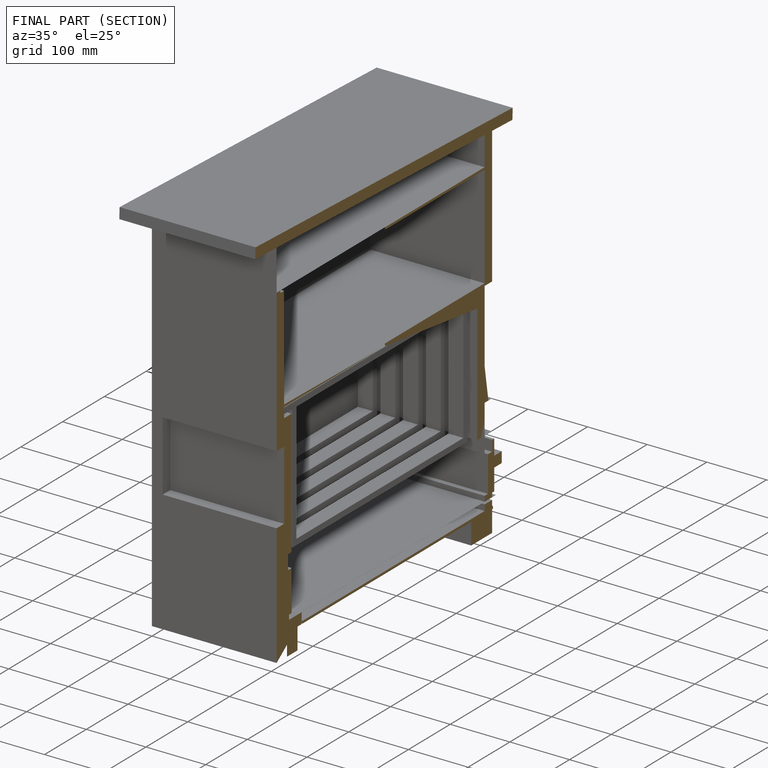
[diagram: finished part — half-section view (interior)]
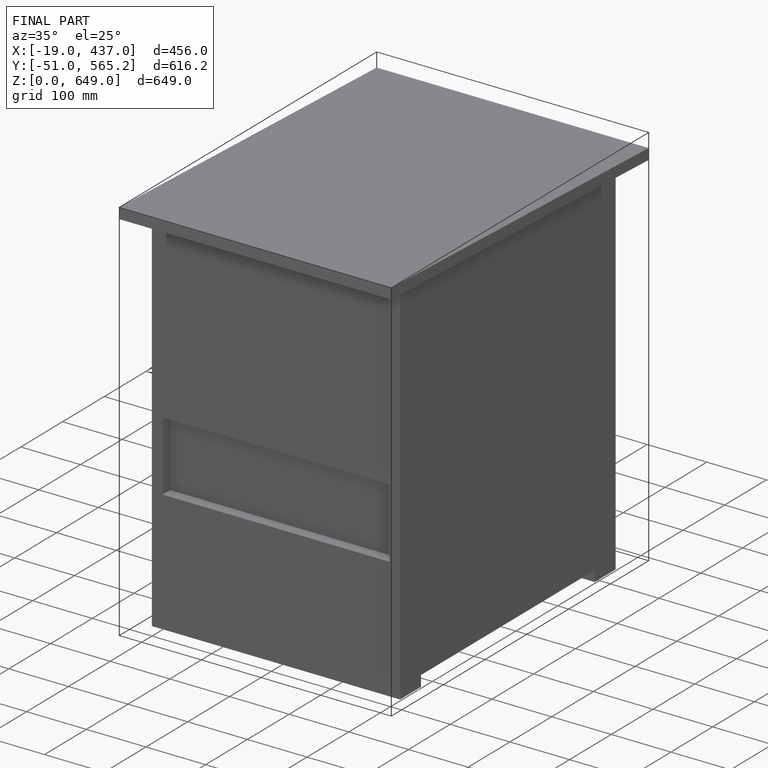
[diagram: finished part — iso view with bounding-box wireframe]
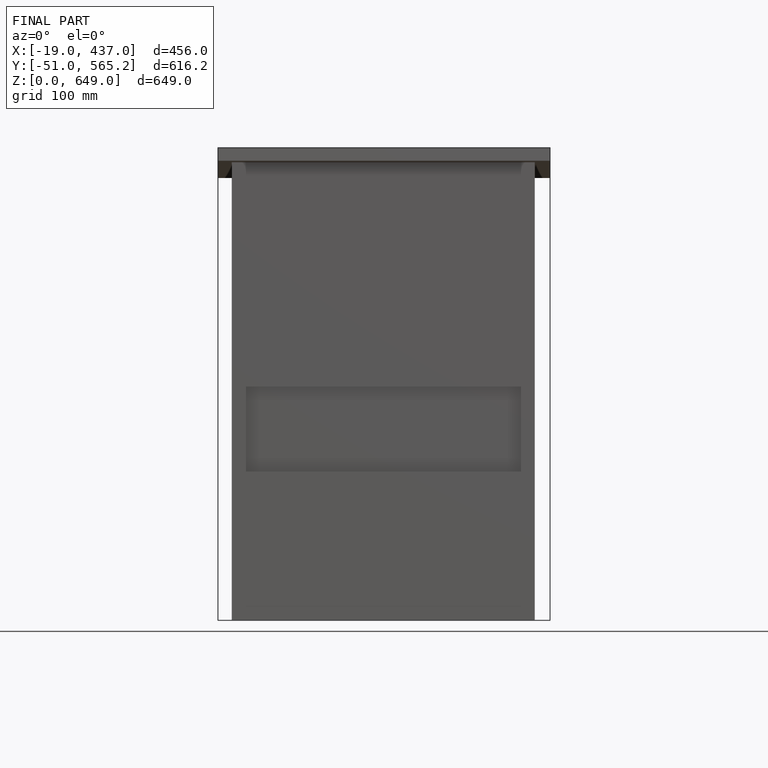
[diagram: finished part — front view with bounding-box wireframe]
